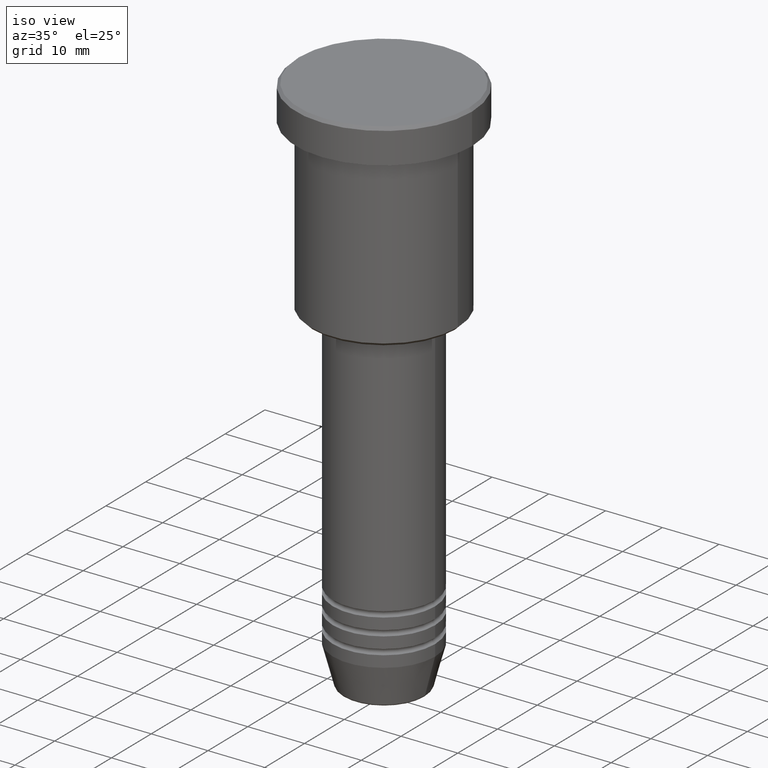
[diagram: clean part render]
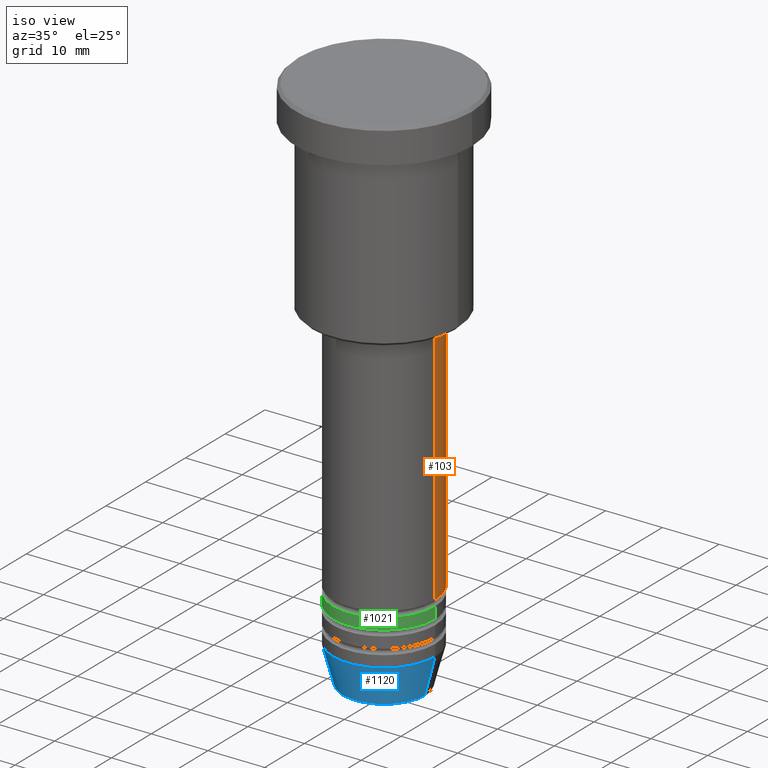
[diagram: same view with three faces highlighted in distinct colors, each labeled with its STEP entity id]
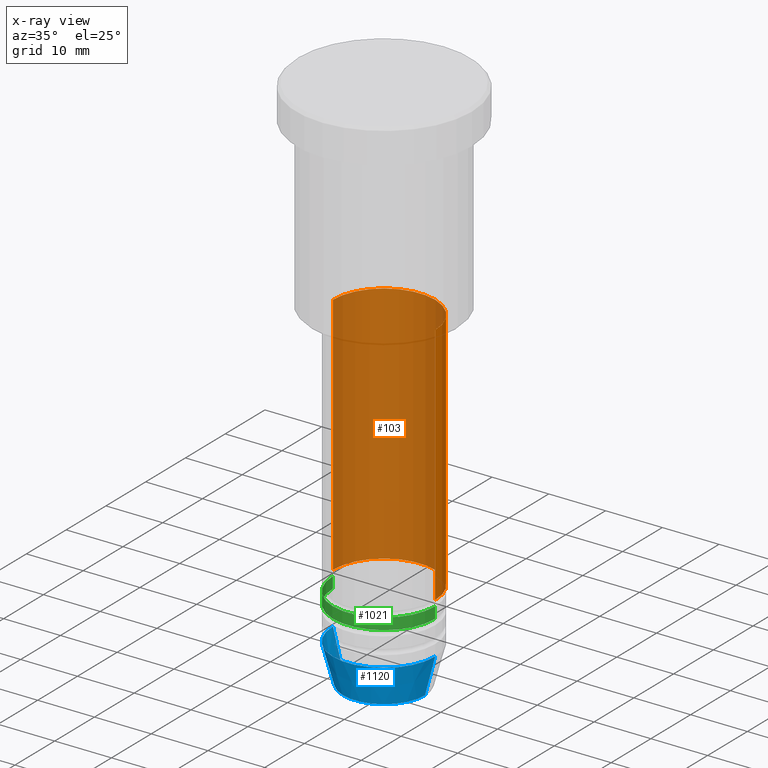
[diagram: x-ray of the same camera — body ghosted, the three highlighted faces saturated]
A machine part, iso view with three faces highlighted in distinct colors.
The next image is the same camera in x-ray (body ghosted, the three faces saturated) — at least one of them is partly hidden behind the body in this view.
Their STEP definitions:

[orange] entity #103 — the highlighted cylindrical surface (partial cylindrical patch) has radius 9 mm, axis along (-0, -0, 1).
#27 = ORIENTED_EDGE ( 'NONE', *, *, #237, .F. ) ;
#43 = CARTESIAN_POINT ( 'NONE',  ( 9.000000000000000000, 0.000000000000000000, -79.99999999999997158 ) ) ;
#48 = AXIS2_PLACEMENT_3D ( 'NONE', #554, #373, #742 ) ;
#103 = ADVANCED_FACE ( 'NONE', ( #1104 ), #648, .T. ) ;
#120 = EDGE_CURVE ( 'NONE', #274, #490, #376, .T. ) ;
#141 = VECTOR ( 'NONE', #1147, 1000.000000000000000 ) ;
#183 = DIRECTION ( 'NONE',  ( -0.000000000000000000, -0.000000000000000000, 1.000000000000000000 ) ) ;
#237 = EDGE_CURVE ( 'NONE', #274, #356, #1131, .T. ) ;
#242 = AXIS2_PLACEMENT_3D ( 'NONE', #1041, #273, #921 ) ;
#250 = CARTESIAN_POINT ( 'NONE',  ( 0.000000000000000000, 0.000000000000000000, -36.99999999999997868 ) ) ;
#268 = CARTESIAN_POINT ( 'NONE',  ( -9.000000000000000000, 1.102182119232617714E-15, -79.99999999999997158 ) ) ;
#273 = DIRECTION ( 'NONE',  ( -0.000000000000000000, -0.000000000000000000, 1.000000000000000000 ) ) ;
#274 = VERTEX_POINT ( 'NONE', #43 ) ;
#348 = DIRECTION ( 'NONE',  ( -0.000000000000000000, -0.000000000000000000, 1.000000000000000000 ) ) ;
#353 = CARTESIAN_POINT ( 'NONE',  ( 9.000000000000000000, 0.000000000000000000, -36.99999999999997868 ) ) ;
#356 = VERTEX_POINT ( 'NONE', #353 ) ;
#373 = DIRECTION ( 'NONE',  ( -0.000000000000000000, -0.000000000000000000, 1.000000000000000000 ) ) ;
#376 = CIRCLE ( 'NONE', #48, 9.000000000000000000 ) ;
#489 = EDGE_CURVE ( 'NONE', #356, #567, #512, .T. ) ;
#490 = VERTEX_POINT ( 'NONE', #268 ) ;
#512 = CIRCLE ( 'NONE', #1178, 9.000000000000000000 ) ;
#554 = CARTESIAN_POINT ( 'NONE',  ( 0.000000000000000000, 0.000000000000000000, -79.99999999999997158 ) ) ;
#567 = VERTEX_POINT ( 'NONE', #932 ) ;
#648 = CYLINDRICAL_SURFACE ( 'NONE', #242, 9.000000000000000000 ) ;
#662 = ORIENTED_EDGE ( 'NONE', *, *, #489, .F. ) ;
#686 = ORIENTED_EDGE ( 'NONE', *, *, #120, .T. ) ;
#693 = EDGE_LOOP ( 'NONE', ( #686, #1150, #662, #27 ) ) ;
#742 = DIRECTION ( 'NONE',  ( 1.000000000000000000, 0.000000000000000000, 0.000000000000000000 ) ) ;
#755 = DIRECTION ( 'NONE',  ( 1.000000000000000000, 0.000000000000000000, 0.000000000000000000 ) ) ;
#802 = LINE ( 'NONE', #912, #1017 ) ;
#874 = CARTESIAN_POINT ( 'NONE',  ( 9.000000000000000000, 0.000000000000000000, 0.000000000000000000 ) ) ;
#910 = EDGE_CURVE ( 'NONE', #490, #567, #802, .T. ) ;
#912 = CARTESIAN_POINT ( 'NONE',  ( -9.000000000000000000, 1.102182119232617714E-15, 0.000000000000000000 ) ) ;
#921 = DIRECTION ( 'NONE',  ( 1.000000000000000000, 0.000000000000000000, 0.000000000000000000 ) ) ;
#932 = CARTESIAN_POINT ( 'NONE',  ( -9.000000000000000000, 1.102182119232617714E-15, -36.99999999999997868 ) ) ;
#1017 = VECTOR ( 'NONE', #183, 1000.000000000000000 ) ;
#1041 = CARTESIAN_POINT ( 'NONE',  ( 0.000000000000000000, 0.000000000000000000, 0.000000000000000000 ) ) ;
#1104 = FACE_OUTER_BOUND ( 'NONE', #693, .T. ) ;
#1131 = LINE ( 'NONE', #874, #141 ) ;
#1147 = DIRECTION ( 'NONE',  ( -0.000000000000000000, -0.000000000000000000, 1.000000000000000000 ) ) ;
#1150 = ORIENTED_EDGE ( 'NONE', *, *, #910, .T. ) ;
#1178 = AXIS2_PLACEMENT_3D ( 'NONE', #250, #348, #755 ) ;

[blue] entity #1120 — the highlighted conical surface has half-angle 15 deg.
#46 = VERTEX_POINT ( 'NONE', #991 ) ;
#123 = VECTOR ( 'NONE', #845, 1000.000000000000000 ) ;
#130 = EDGE_LOOP ( 'NONE', ( #962, #896, #1119, #690 ) ) ;
#257 = EDGE_CURVE ( 'NONE', #46, #862, #341, .T. ) ;
#308 = EDGE_CURVE ( 'NONE', #1102, #862, #508, .T. ) ;
#324 = CIRCLE ( 'NONE', #1110, 7.223655072137188604 ) ;
#334 = CARTESIAN_POINT ( 'NONE',  ( 7.223655072137188604, 0.000000000000000000, -95.62940952255127058 ) ) ;
#341 = CIRCLE ( 'NONE', #556, 9.000000000000000000 ) ;
#366 = CARTESIAN_POINT ( 'NONE',  ( -9.000000000000000000, 1.102182119232617714E-15, -89.00000000000000000 ) ) ;
#369 = CARTESIAN_POINT ( 'NONE',  ( 0.000000000000000000, 0.000000000000000000, -95.62940952255127058 ) ) ;
#390 = CARTESIAN_POINT ( 'NONE',  ( -7.223655072137189492, 9.934123627281765110E-16, -95.62940952255127058 ) ) ;
#406 = DIRECTION ( 'NONE',  ( 1.000000000000000000, 0.000000000000000000, 0.000000000000000000 ) ) ;
#425 = CARTESIAN_POINT ( 'NONE',  ( 0.000000000000000000, 0.000000000000000000, -89.00000000000000000 ) ) ;
#457 = VECTOR ( 'NONE', #791, 1000.000000000000000 ) ;
#505 = DIRECTION ( 'NONE',  ( -0.000000000000000000, -0.000000000000000000, 1.000000000000000000 ) ) ;
#508 = LINE ( 'NONE', #584, #457 ) ;
#509 = FACE_OUTER_BOUND ( 'NONE', #130, .T. ) ;
#556 = AXIS2_PLACEMENT_3D ( 'NONE', #779, #590, #677 ) ;
#565 = EDGE_CURVE ( 'NONE', #973, #46, #1024, .T. ) ;
#584 = CARTESIAN_POINT ( 'NONE',  ( 9.000000000000000000, 0.000000000000000000, -89.00000000000000000 ) ) ;
#590 = DIRECTION ( 'NONE',  ( -0.000000000000000000, -0.000000000000000000, 1.000000000000000000 ) ) ;
#671 = AXIS2_PLACEMENT_3D ( 'NONE', #425, #505, #406 ) ;
#677 = DIRECTION ( 'NONE',  ( 1.000000000000000000, 0.000000000000000000, 0.000000000000000000 ) ) ;
#690 = ORIENTED_EDGE ( 'NONE', *, *, #257, .F. ) ;
#779 = CARTESIAN_POINT ( 'NONE',  ( 0.000000000000000000, 0.000000000000000000, -89.00000000000000000 ) ) ;
#791 = DIRECTION ( 'NONE',  ( 0.2588190451025213501, 0.000000000000000000, 0.9659258262890680902 ) ) ;
#826 = CONICAL_SURFACE ( 'NONE', #671, 9.000000000000000000, 0.2617993877991500740 ) ;
#845 = DIRECTION ( 'NONE',  ( -0.2588190451025213501, 3.169619151431772337E-17, 0.9659258262890680902 ) ) ;
#862 = VERTEX_POINT ( 'NONE', #1086 ) ;
#896 = ORIENTED_EDGE ( 'NONE', *, *, #961, .T. ) ;
#961 = EDGE_CURVE ( 'NONE', #973, #1102, #324, .T. ) ;
#962 = ORIENTED_EDGE ( 'NONE', *, *, #565, .F. ) ;
#973 = VERTEX_POINT ( 'NONE', #390 ) ;
#991 = CARTESIAN_POINT ( 'NONE',  ( -9.000000000000000000, 1.102182119232617714E-15, -89.00000000000000000 ) ) ;
#1024 = LINE ( 'NONE', #366, #123 ) ;
#1080 = DIRECTION ( 'NONE',  ( 1.000000000000000000, 0.000000000000000000, 0.000000000000000000 ) ) ;
#1086 = CARTESIAN_POINT ( 'NONE',  ( 9.000000000000000000, 0.000000000000000000, -89.00000000000000000 ) ) ;
#1102 = VERTEX_POINT ( 'NONE', #334 ) ;
#1110 = AXIS2_PLACEMENT_3D ( 'NONE', #369, #1159, #1080 ) ;
#1119 = ORIENTED_EDGE ( 'NONE', *, *, #308, .T. ) ;
#1120 = ADVANCED_FACE ( 'NONE', ( #509 ), #826, .T. ) ;
#1159 = DIRECTION ( 'NONE',  ( -0.000000000000000000, -0.000000000000000000, 1.000000000000000000 ) ) ;

[green] entity #1021 — the highlighted cylindrical surface (partial cylindrical patch) has radius 9 mm, axis along (-0, -0, 1).
#8 = EDGE_CURVE ( 'NONE', #1081, #101, #478, .T. ) ;
#29 = CARTESIAN_POINT ( 'NONE',  ( -9.000000000000000000, 1.102182119232617714E-15, -80.99999999999997158 ) ) ;
#67 = VECTOR ( 'NONE', #698, 1000.000000000000000 ) ;
#84 = CARTESIAN_POINT ( 'NONE',  ( -9.000000000000000000, 1.102182119232617714E-15, -82.99999999999997158 ) ) ;
#101 = VERTEX_POINT ( 'NONE', #739 ) ;
#177 = ORIENTED_EDGE ( 'NONE', *, *, #328, .F. ) ;
#213 = VERTEX_POINT ( 'NONE', #29 ) ;
#214 = FACE_OUTER_BOUND ( 'NONE', #1179, .T. ) ;
#215 = CARTESIAN_POINT ( 'NONE',  ( 9.000000000000000000, 0.000000000000000000, 0.000000000000000000 ) ) ;
#306 = ORIENTED_EDGE ( 'NONE', *, *, #1068, .T. ) ;
#307 = CARTESIAN_POINT ( 'NONE',  ( 0.000000000000000000, 0.000000000000000000, -80.99999999999997158 ) ) ;
#311 = DIRECTION ( 'NONE',  ( -0.000000000000000000, -0.000000000000000000, 1.000000000000000000 ) ) ;
#325 = AXIS2_PLACEMENT_3D ( 'NONE', #467, #668, #758 ) ;
#328 = EDGE_CURVE ( 'NONE', #626, #213, #878, .T. ) ;
#386 = CARTESIAN_POINT ( 'NONE',  ( 0.000000000000000000, 0.000000000000000000, 0.000000000000000000 ) ) ;
#396 = CARTESIAN_POINT ( 'NONE',  ( -9.000000000000000000, 1.102182119232617714E-15, 0.000000000000000000 ) ) ;
#467 = CARTESIAN_POINT ( 'NONE',  ( 0.000000000000000000, 0.000000000000000000, -82.99999999999997158 ) ) ;
#478 = LINE ( 'NONE', #215, #840 ) ;
#572 = CYLINDRICAL_SURFACE ( 'NONE', #1160, 9.000000000000000000 ) ;
#626 = VERTEX_POINT ( 'NONE', #84 ) ;
#668 = DIRECTION ( 'NONE',  ( -0.000000000000000000, -0.000000000000000000, 1.000000000000000000 ) ) ;
#675 = DIRECTION ( 'NONE',  ( -0.000000000000000000, -0.000000000000000000, 1.000000000000000000 ) ) ;
#698 = DIRECTION ( 'NONE',  ( -0.000000000000000000, -0.000000000000000000, 1.000000000000000000 ) ) ;
#732 = CIRCLE ( 'NONE', #325, 9.000000000000000000 ) ;
#739 = CARTESIAN_POINT ( 'NONE',  ( 9.000000000000000000, 0.000000000000000000, -80.99999999999997158 ) ) ;
#758 = DIRECTION ( 'NONE',  ( 1.000000000000000000, 0.000000000000000000, 0.000000000000000000 ) ) ;
#761 = DIRECTION ( 'NONE',  ( 1.000000000000000000, 0.000000000000000000, 0.000000000000000000 ) ) ;
#778 = EDGE_CURVE ( 'NONE', #213, #101, #1180, .T. ) ;
#788 = ORIENTED_EDGE ( 'NONE', *, *, #778, .F. ) ;
#832 = CARTESIAN_POINT ( 'NONE',  ( 9.000000000000000000, 0.000000000000000000, -82.99999999999997158 ) ) ;
#840 = VECTOR ( 'NONE', #311, 1000.000000000000000 ) ;
#878 = LINE ( 'NONE', #396, #67 ) ;
#956 = DIRECTION ( 'NONE',  ( 1.000000000000000000, 0.000000000000000000, 0.000000000000000000 ) ) ;
#1021 = ADVANCED_FACE ( 'NONE', ( #214 ), #572, .T. ) ;
#1026 = DIRECTION ( 'NONE',  ( -0.000000000000000000, -0.000000000000000000, 1.000000000000000000 ) ) ;
#1068 = EDGE_CURVE ( 'NONE', #626, #1081, #732, .T. ) ;
#1073 = AXIS2_PLACEMENT_3D ( 'NONE', #307, #675, #956 ) ;
#1081 = VERTEX_POINT ( 'NONE', #832 ) ;
#1135 = ORIENTED_EDGE ( 'NONE', *, *, #8, .T. ) ;
#1160 = AXIS2_PLACEMENT_3D ( 'NONE', #386, #1026, #761 ) ;
#1179 = EDGE_LOOP ( 'NONE', ( #177, #306, #1135, #788 ) ) ;
#1180 = CIRCLE ( 'NONE', #1073, 9.000000000000000000 ) ;